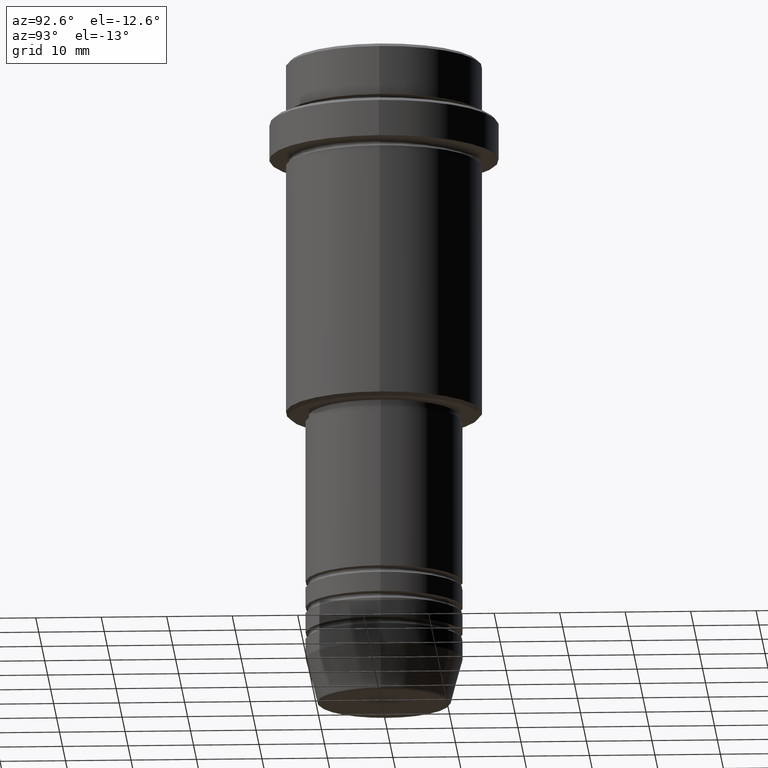
[diagram: clean part render]
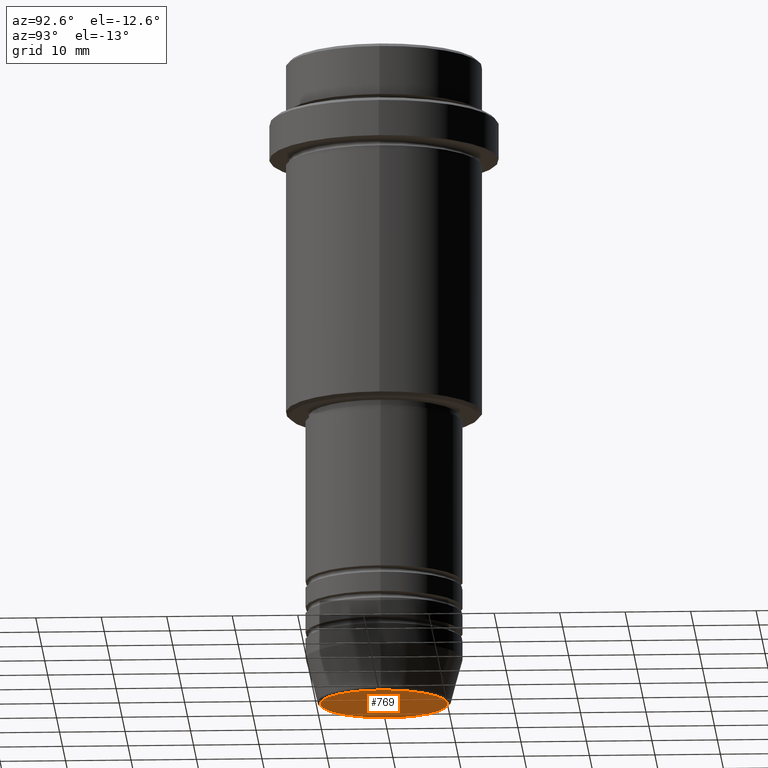
[diagram: same view with one face highlighted and labeled with its STEP entity id]
A machine part, auxiliary view. The second image highlights one B-rep face of the part: STEP entity #769.
In plain terms, the highlighted planar face has unit normal (0, -0, 1).
Its self-contained STEP definition (entity closure, byte-faithful):
#27 = PLANE ( 'NONE',  #1181 ) ;
#53 = AXIS2_PLACEMENT_3D ( 'NONE', #421, #1205, #106 ) ;
#91 = CIRCLE ( 'NONE', #53, 9.740692158992654726 ) ;
#106 = DIRECTION ( 'NONE',  ( 1.000000000000000000, 0.000000000000000000, 0.000000000000000000 ) ) ;
#228 = FACE_OUTER_BOUND ( 'NONE', #671, .T. ) ;
#280 = DIRECTION ( 'NONE',  ( 1.000000000000000000, 0.000000000000000000, 0.000000000000000000 ) ) ;
#353 = CARTESIAN_POINT ( 'NONE',  ( 9.740692158992654726, 0.000000000000000000, -100.0000000000000000 ) ) ;
#373 = EDGE_CURVE ( 'NONE', #1263, #914, #91, .T. ) ;
#421 = CARTESIAN_POINT ( 'NONE',  ( 0.000000000000000000, 0.000000000000000000, -100.0000000000000000 ) ) ;
#502 = ORIENTED_EDGE ( 'NONE', *, *, #1031, .T. ) ;
#586 = ORIENTED_EDGE ( 'NONE', *, *, #373, .T. ) ;
#666 = AXIS2_PLACEMENT_3D ( 'NONE', #1285, #1315, #280 ) ;
#671 = EDGE_LOOP ( 'NONE', ( #502, #586 ) ) ;
#677 = DIRECTION ( 'NONE',  ( 1.000000000000000000, 0.000000000000000000, 0.000000000000000000 ) ) ;
#769 = ADVANCED_FACE ( 'NONE', ( #228 ), #27, .F. ) ;
#896 = CARTESIAN_POINT ( 'NONE',  ( 0.000000000000000000, 0.000000000000000000, -100.0000000000000000 ) ) ;
#914 = VERTEX_POINT ( 'NONE', #353 ) ;
#1007 = CARTESIAN_POINT ( 'NONE',  ( -9.740692158992654726, 1.222463696683474210E-15, -100.0000000000000000 ) ) ;
#1025 = CIRCLE ( 'NONE', #666, 9.740692158992654726 ) ;
#1031 = EDGE_CURVE ( 'NONE', #914, #1263, #1025, .T. ) ;
#1181 = AXIS2_PLACEMENT_3D ( 'NONE', #896, #1230, #677 ) ;
#1205 = DIRECTION ( 'NONE',  ( 0.000000000000000000, 0.000000000000000000, -1.000000000000000000 ) ) ;
#1230 = DIRECTION ( 'NONE',  ( 0.000000000000000000, -0.000000000000000000, 1.000000000000000000 ) ) ;
#1263 = VERTEX_POINT ( 'NONE', #1007 ) ;
#1285 = CARTESIAN_POINT ( 'NONE',  ( 0.000000000000000000, 0.000000000000000000, -100.0000000000000000 ) ) ;
#1315 = DIRECTION ( 'NONE',  ( 0.000000000000000000, 0.000000000000000000, -1.000000000000000000 ) ) ;